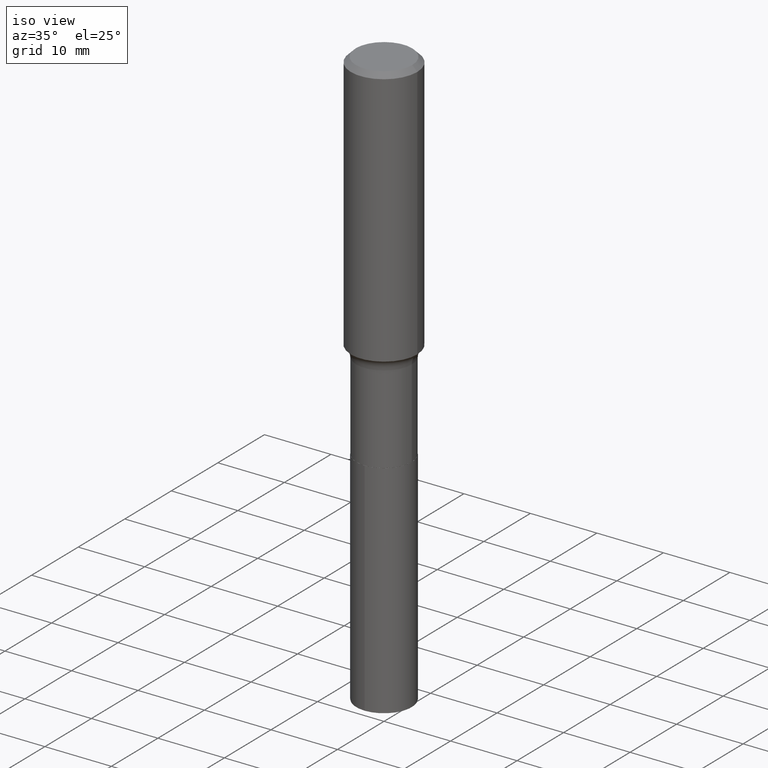
[diagram: clean part render]
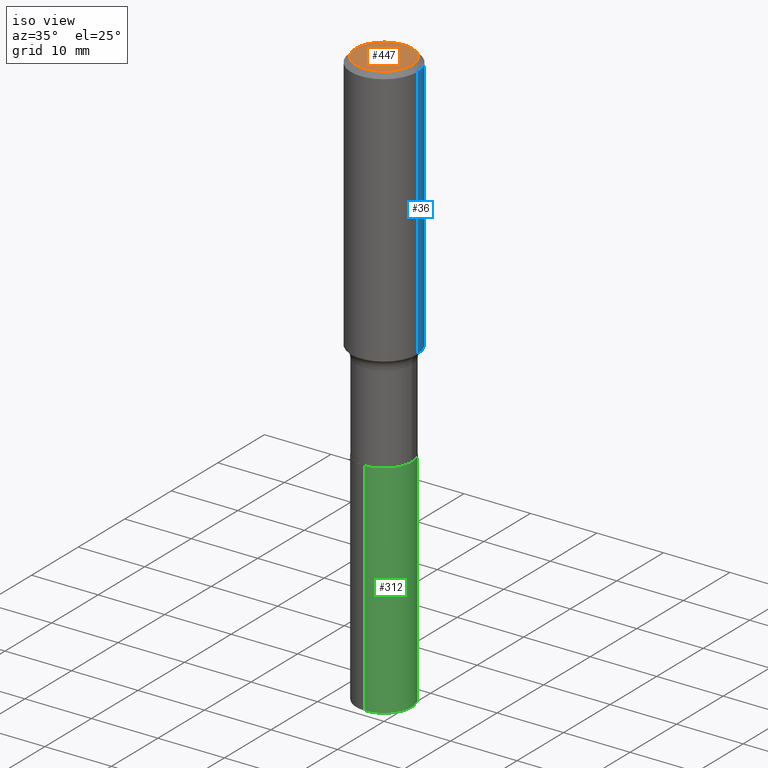
[diagram: same view with three faces highlighted in distinct colors, each labeled with its STEP entity id]
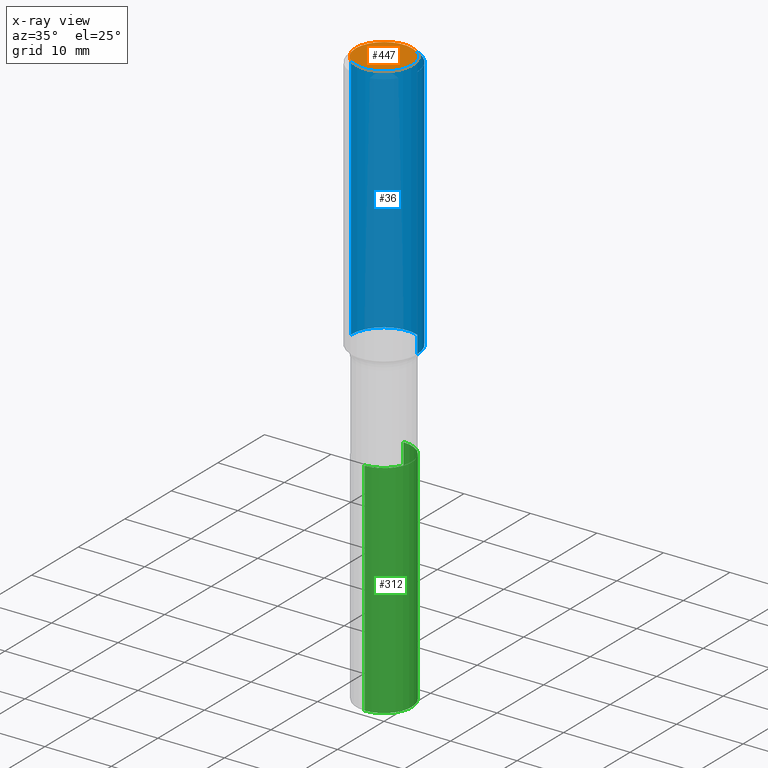
[diagram: x-ray of the same camera — body ghosted, the three highlighted faces saturated]
A machine part, iso view with three faces highlighted in distinct colors.
The next image is the same camera in x-ray (body ghosted, the three faces saturated) — at least one of them is partly hidden behind the body in this view.
Their STEP definitions:

[orange] entity #447 — the highlighted planar face has unit normal (0, -0, -1).
#20 = DIRECTION ( 'NONE',  ( -2.445468806185136597E-29, 3.491481338843145583E-15, 1.000000000000000000 ) ) ;
#58 = DIRECTION ( 'NONE',  ( -2.445468806185136597E-29, 3.491481338843145583E-15, 1.000000000000000000 ) ) ;
#65 = PLANE ( 'NONE',  #271 ) ;
#92 = CIRCLE ( 'NONE', #231, 0.1673224999999999851 ) ;
#97 = VERTEX_POINT ( 'NONE', #443 ) ;
#99 = EDGE_LOOP ( 'NONE', ( #403, #303 ) ) ;
#102 = CARTESIAN_POINT ( 'NONE',  ( -1.001697619218021790E-46, 1.430158722866389718E-32, 4.096137381448108366E-18 ) ) ;
#106 = DIRECTION ( 'NONE',  ( -1.000000000000000000, 6.982962677686265922E-15, -4.876176775795935793E-29 ) ) ;
#134 = AXIS2_PLACEMENT_3D ( 'NONE', #102, #20, #217 ) ;
#144 = DIRECTION ( 'NONE',  ( 2.438088387897960049E-29, -3.491481338843145188E-15, -1.000000000000000000 ) ) ;
#217 = DIRECTION ( 'NONE',  ( 1.000000000000000000, -6.982962677686267499E-15, 4.876294436782262290E-29 ) ) ;
#231 = AXIS2_PLACEMENT_3D ( 'NONE', #281, #58, #356 ) ;
#234 = CARTESIAN_POINT ( 'NONE',  ( 0.1673224999999999851, -1.300749711163072594E-15, 4.096137381456741925E-18 ) ) ;
#271 = AXIS2_PLACEMENT_3D ( 'NONE', #286, #144, #106 ) ;
#281 = CARTESIAN_POINT ( 'NONE',  ( -1.001697619218021790E-46, 1.430158722866389718E-32, 4.096137381448108366E-18 ) ) ;
#286 = CARTESIAN_POINT ( 'NONE',  ( -5.008488096090108951E-47, 7.150793614331948590E-33, 2.048068690724054183E-18 ) ) ;
#303 = ORIENTED_EDGE ( 'NONE', *, *, #441, .T. ) ;
#356 = DIRECTION ( 'NONE',  ( 1.000000000000000000, -6.982962677686267499E-15, 4.876294436782262290E-29 ) ) ;
#387 = VERTEX_POINT ( 'NONE', #234 ) ;
#403 = ORIENTED_EDGE ( 'NONE', *, *, #436, .T. ) ;
#408 = FACE_OUTER_BOUND ( 'NONE', #99, .T. ) ;
#436 = EDGE_CURVE ( 'NONE', #97, #387, #461, .T. ) ;
#441 = EDGE_CURVE ( 'NONE', #387, #97, #92, .T. ) ;
#443 = CARTESIAN_POINT ( 'NONE',  ( -0.1673224999999999851, 1.219954130253505460E-15, 4.096137381439757534E-18 ) ) ;
#447 = ADVANCED_FACE ( 'NONE', ( #408 ), #65, .F. ) ;
#461 = CIRCLE ( 'NONE', #134, 0.1673224999999999851 ) ;

[blue] entity #36 — the highlighted cylindrical surface (partial cylindrical patch) has radius 5 mm, axis along (-0, 0, 1).
#2 = CYLINDRICAL_SURFACE ( 'NONE', #263, 0.1968500000000001082 ) ;
#32 = DIRECTION ( 'NONE',  ( 1.000000000000000000, -6.982962677686266711E-15, 0.000000000000000000 ) ) ;
#36 = ADVANCED_FACE ( 'NONE', ( #164 ), #2, .T. ) ;
#57 = DIRECTION ( 'NONE',  ( -2.445468806185136877E-29, 3.491481338843145188E-15, 1.000000000000000000 ) ) ;
#70 = DIRECTION ( 'NONE',  ( -2.445468806185136597E-29, 3.491481338843145583E-15, 1.000000000000000000 ) ) ;
#94 = CARTESIAN_POINT ( 'NONE',  ( -0.1968500000000001082, 1.398703375343757985E-15, -9.682923725166787881E-30 ) ) ;
#95 = DIRECTION ( 'NONE',  ( 1.000000000000000000, -6.982962677686266711E-15, 4.876176775795935793E-29 ) ) ;
#121 = ORIENTED_EDGE ( 'NONE', *, *, #486, .T. ) ;
#148 = DIRECTION ( 'NONE',  ( -2.445468806185136597E-29, 3.491481338843145583E-15, 1.000000000000000000 ) ) ;
#155 = DIRECTION ( 'NONE',  ( -2.445468806185136597E-29, 3.491481338843145583E-15, 1.000000000000000000 ) ) ;
#164 = FACE_OUTER_BOUND ( 'NONE', #406, .T. ) ;
#170 = EDGE_CURVE ( 'NONE', #192, #172, #490, .T. ) ;
#172 = VERTEX_POINT ( 'NONE', #374 ) ;
#181 = CARTESIAN_POINT ( 'NONE',  ( -0.1968500000000000527, -1.342561542734275109E-15, -0.02952750000000021330 ) ) ;
#192 = VERTEX_POINT ( 'NONE', #459 ) ;
#193 = EDGE_CURVE ( 'NONE', #192, #244, #452, .T. ) ;
#195 = EDGE_CURVE ( 'NONE', #172, #437, #297, .T. ) ;
#196 = DIRECTION ( 'NONE',  ( 1.000000000000000000, -6.982962677686266711E-15, 0.000000000000000000 ) ) ;
#239 = AXIS2_PLACEMENT_3D ( 'NONE', #416, #148, #32 ) ;
#244 = VERTEX_POINT ( 'NONE', #299 ) ;
#259 = ORIENTED_EDGE ( 'NONE', *, *, #195, .F. ) ;
#263 = AXIS2_PLACEMENT_3D ( 'NONE', #273, #155, #95 ) ;
#273 = CARTESIAN_POINT ( 'NONE',  ( 0.000000000000000000, 0.000000000000000000, 0.000000000000000000 ) ) ;
#275 = LINE ( 'NONE', #94, #432 ) ;
#290 = CARTESIAN_POINT ( 'NONE',  ( 7.220858017463213864E-31, -1.030947152326917226E-16, -0.02952750000000021330 ) ) ;
#292 = AXIS2_PLACEMENT_3D ( 'NONE', #290, #70, #196 ) ;
#297 = CIRCLE ( 'NONE', #292, 0.1968500000000000527 ) ;
#299 = CARTESIAN_POINT ( 'NONE',  ( -0.1968500000000001915, -3.980731745579616320E-15, -1.540731454318978955 ) ) ;
#324 = CARTESIAN_POINT ( 'NONE',  ( 0.1968500000000001082, -1.374596203102542397E-15, 9.598753983154305062E-30 ) ) ;
#355 = ORIENTED_EDGE ( 'NONE', *, *, #193, .T. ) ;
#373 = ORIENTED_EDGE ( 'NONE', *, *, #170, .F. ) ;
#374 = CARTESIAN_POINT ( 'NONE',  ( 0.1968500000000000527, -1.477690918335233688E-15, -0.02952750000000021330 ) ) ;
#406 = EDGE_LOOP ( 'NONE', ( #355, #121, #259, #373 ) ) ;
#416 = CARTESIAN_POINT ( 'NONE',  ( 3.767810710245322715E-29, -5.379435120923374897E-15, -1.540731454318978955 ) ) ;
#432 = VECTOR ( 'NONE', #57, 39.37007874015748143 ) ;
#437 = VERTEX_POINT ( 'NONE', #181 ) ;
#452 = CIRCLE ( 'NONE', #239, 0.1968500000000001915 ) ;
#454 = DIRECTION ( 'NONE',  ( -2.445468806185136877E-29, 3.491481338843145188E-15, 1.000000000000000000 ) ) ;
#459 = CARTESIAN_POINT ( 'NONE',  ( 0.1968500000000001915, -6.754031324025918083E-15, -1.540731454318978955 ) ) ;
#484 = VECTOR ( 'NONE', #454, 39.37007874015748143 ) ;
#486 = EDGE_CURVE ( 'NONE', #244, #437, #275, .T. ) ;
#490 = LINE ( 'NONE', #324, #484 ) ;

[green] entity #312 — the highlighted cylindrical surface (edge-blend (fillet) strip) has radius 4.1669 mm, axis along (-0, 0, 1).
#3 = CARTESIAN_POINT ( 'NONE',  ( 1.165645358014496035E-15, 0.1640499999999925906, -2.125900000000000567 ) ) ;
#6 = ORIENTED_EDGE ( 'NONE', *, *, #440, .T. ) ;
#13 = LINE ( 'NONE', #79, #163 ) ;
#16 = CARTESIAN_POINT ( 'NONE',  ( 5.198822135068982087E-29, -7.422540178246643119E-15, -2.125899999999999679 ) ) ;
#28 = AXIS2_PLACEMENT_3D ( 'NONE', #212, #219, #315 ) ;
#62 = VECTOR ( 'NONE', #129, 39.37007874015748143 ) ;
#79 = CARTESIAN_POINT ( 'NONE',  ( -1.145555027274379992E-15, -0.1640500000000074121, -2.125899999999999235 ) ) ;
#81 = DIRECTION ( 'NONE',  ( -2.445510554620705079E-29, 3.491421552707238058E-15, 1.000000000000000000 ) ) ;
#85 = LINE ( 'NONE', #3, #62 ) ;
#90 = VERTEX_POINT ( 'NONE', #171 ) ;
#100 = ORIENTED_EDGE ( 'NONE', *, *, #379, .F. ) ;
#123 = AXIS2_PLACEMENT_3D ( 'NONE', #242, #81, #468 ) ;
#124 = EDGE_LOOP ( 'NONE', ( #6, #251, #100, #425 ) ) ;
#129 = DIRECTION ( 'NONE',  ( -2.445510554620705359E-29, 3.491421552707238452E-15, 1.000000000000000000 ) ) ;
#138 = VERTEX_POINT ( 'NONE', #214 ) ;
#163 = VECTOR ( 'NONE', #166, 39.37007874015748143 ) ;
#166 = DIRECTION ( 'NONE',  ( -2.445510554620705359E-29, 3.491421552707238452E-15, 1.000000000000000000 ) ) ;
#168 = DIRECTION ( 'NONE',  ( -2.445510554620705079E-29, 3.491421552707238058E-15, 1.000000000000000000 ) ) ;
#171 = CARTESIAN_POINT ( 'NONE',  ( 1.165645358014528181E-15, 0.1640499999999925906, -2.125900000000000567 ) ) ;
#175 = CIRCLE ( 'NONE', #255, 0.1640500000000000014 ) ;
#204 = DIRECTION ( 'NONE',  ( -6.982962677686265133E-15, -1.000000000000000000, 3.330506545156066257E-15 ) ) ;
#212 = CARTESIAN_POINT ( 'NONE',  ( 8.406646011278087519E-29, -1.200230590345424907E-14, -3.437619497651742684 ) ) ;
#214 = CARTESIAN_POINT ( 'NONE',  ( -1.145555027274379992E-15, -0.1640500000000074121, -2.125899999999999235 ) ) ;
#219 = DIRECTION ( 'NONE',  ( -2.445510554620705079E-29, 3.491421552707238058E-15, 1.000000000000000000 ) ) ;
#242 = CARTESIAN_POINT ( 'NONE',  ( 5.198822135068982087E-29, -7.422540178246643119E-15, -2.125899999999999679 ) ) ;
#246 = CARTESIAN_POINT ( 'NONE',  ( -1.145555027274347452E-15, -0.1640500000000119363, -3.437619497651742240 ) ) ;
#247 = CIRCLE ( 'NONE', #28, 0.1640500000000000014 ) ;
#251 = ORIENTED_EDGE ( 'NONE', *, *, #280, .T. ) ;
#255 = AXIS2_PLACEMENT_3D ( 'NONE', #16, #168, #204 ) ;
#280 = EDGE_CURVE ( 'NONE', #384, #90, #85, .T. ) ;
#312 = ADVANCED_FACE ( 'NONE', ( #420 ), #421, .T. ) ;
#315 = DIRECTION ( 'NONE',  ( -6.982962677686265133E-15, -1.000000000000000000, 3.330506545156066257E-15 ) ) ;
#342 = VERTEX_POINT ( 'NONE', #246 ) ;
#379 = EDGE_CURVE ( 'NONE', #138, #90, #175, .T. ) ;
#384 = VERTEX_POINT ( 'NONE', #385 ) ;
#385 = CARTESIAN_POINT ( 'NONE',  ( 1.165645358014527787E-15, 0.1640499999999879277, -3.437619497651743128 ) ) ;
#386 = EDGE_CURVE ( 'NONE', #342, #138, #13, .T. ) ;
#420 = FACE_OUTER_BOUND ( 'NONE', #124, .T. ) ;
#421 = CYLINDRICAL_SURFACE ( 'NONE', #123, 0.1640500000000000014 ) ;
#425 = ORIENTED_EDGE ( 'NONE', *, *, #386, .F. ) ;
#440 = EDGE_CURVE ( 'NONE', #342, #384, #247, .T. ) ;
#468 = DIRECTION ( 'NONE',  ( -6.982962677686265133E-15, -1.000000000000000000, 3.330506545156066257E-15 ) ) ;